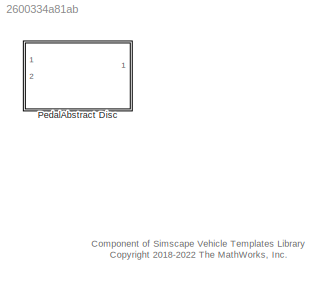
MODEL slx_2600334a81ab
KIND library
CONFIG AbsTol = auto
CONFIG EnableMultiTasking = off
CONFIG FixedStep = auto
CONFIG MaxStep = auto
CONFIG MinStep = auto
CONFIG RelTol = 1e-3
CONFIG SampleTimeConstraint = Unconstrained
CONFIG SolverName = VariableStepAuto
CONFIG StartTime = 0.0
CONFIG StopTime = 10.0
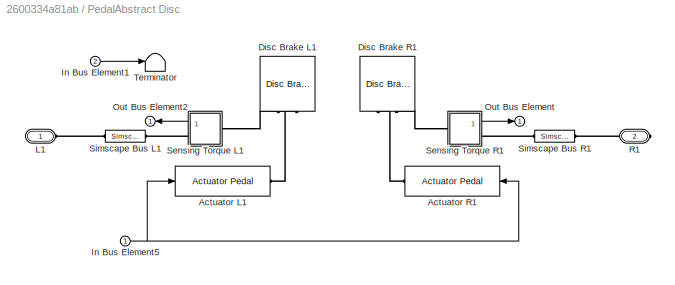
BLOCK [SubSystem] PedalAbstract Disc
  Ports = [2, 1, 0, 0, 0, 1, 1]
  RequestExecContextInheritance = off
  Tag = PublishSubsystem
  VariantControl = Pedal
BLOCK [Reference] PedalAbstract Disc/Actuator L1  REF=Brakes_Elements/Actuator Pedal
  Ports = [1, 0, 0, 0, 0, 0, 1]
  SourceBlock = Brakes_Elements/Actuator Pedal
  SourceType = Brake Actuator, Pedal Input
BLOCK [Reference] PedalAbstract Disc/Actuator R1  REF=Brakes_Elements/Actuator Pedal
  Ports = [1, 0, 0, 0, 0, 0, 1]
  SourceBlock = Brakes_Elements/Actuator Pedal
  SourceType = Brake Actuator, Pedal Input
BLOCK [Reference] PedalAbstract Disc/Disc Brake L1  REF=sdl_lib/Brakes & Detents/Rotational/Disc Brake
  NameLocation = left
  Ports = [0, 0, 0, 0, 0, 2]
  SourceBlock = sdl_lib/Brakes & Detents/Rotational/Disc Brake
  SourceProductBaseCode = LD
  SourceType = Disc Brake
BLOCK [Reference] PedalAbstract Disc/Disc Brake R1  REF=sdl_lib/Brakes & Detents/Rotational/Disc Brake
  NameLocation = right
  Ports = [0, 0, 0, 0, 0, 2]
  SourceBlock = sdl_lib/Brakes & Detents/Rotational/Disc Brake
  SourceProductBaseCode = LD
  SourceType = Disc Brake
BLOCK [Inport] PedalAbstract Disc/In Bus Element1
  Port = 2
BLOCK [Inport] PedalAbstract Disc/In Bus Element5
BLOCK [PMIOPort] PedalAbstract Disc/L1
  Side = Left
BLOCK [Outport] PedalAbstract Disc/Out Bus Element
  VectorParamsAs1DForOutWhenUnconnected = off
BLOCK [Outport] PedalAbstract Disc/Out Bus Element2
  VectorParamsAs1DForOutWhenUnconnected = off
BLOCK [PMIOPort] PedalAbstract Disc/R1
  Port = 2
  Side = Right
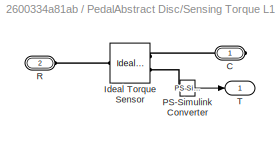
BLOCK [SubSystem] PedalAbstract Disc/Sensing Torque L1
  Ports = [0, 1, 0, 0, 0, 1, 1]
  RequestExecContextInheritance = off
BLOCK [PMIOPort] PedalAbstract Disc/Sensing Torque L1/C
  Side = Right
BLOCK [Reference] PedalAbstract Disc/Sensing Torque L1/Ideal Torque Sensor  REF=fl_lib/Mechanical/Mechanical Sensors/Ideal Torque Sensor
  Ports = [0, 0, 0, 0, 0, 1, 2]
  SourceBlock = fl_lib/Mechanical/Mechanical Sensors/Ideal Torque Sensor
  SourceProductBaseCode = PW,SS,VE
  SourceType = Ideal Torque Sensor
BLOCK [Reference] PedalAbstract Disc/Sensing Torque L1/PS-Simulink Converter  REF=nesl_utility/PS-Simulink
Converter
  Ports = [0, 1, 0, 0, 0, 1]
  SourceBlock = nesl_utility/PS-Simulink\nConverter
  SourceProductBaseCode = SS,PW,VE
  SourceType = PS-Simulink\nConverter
BLOCK [PMIOPort] PedalAbstract Disc/Sensing Torque L1/R
  Port = 2
  Side = Left
BLOCK [Outport] PedalAbstract Disc/Sensing Torque L1/T
  VectorParamsAs1DForOutWhenUnconnected = off
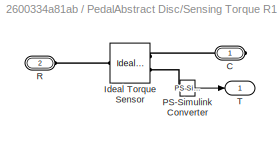
BLOCK [SubSystem] PedalAbstract Disc/Sensing Torque R1
  Ports = [0, 1, 0, 0, 0, 1, 1]
  RequestExecContextInheritance = off
BLOCK [PMIOPort] PedalAbstract Disc/Sensing Torque R1/C
  Side = Right
BLOCK [Reference] PedalAbstract Disc/Sensing Torque R1/Ideal Torque Sensor  REF=fl_lib/Mechanical/Mechanical Sensors/Ideal Torque Sensor
  Ports = [0, 0, 0, 0, 0, 1, 2]
  SourceBlock = fl_lib/Mechanical/Mechanical Sensors/Ideal Torque Sensor
  SourceProductBaseCode = PW,SS,VE
  SourceType = Ideal Torque Sensor
BLOCK [Reference] PedalAbstract Disc/Sensing Torque R1/PS-Simulink Converter  REF=nesl_utility/PS-Simulink
Converter
  Ports = [0, 1, 0, 0, 0, 1]
  SourceBlock = nesl_utility/PS-Simulink\nConverter
  SourceProductBaseCode = SS,PW,VE
  SourceType = PS-Simulink\nConverter
BLOCK [PMIOPort] PedalAbstract Disc/Sensing Torque R1/R
  Port = 2
  Side = Left
BLOCK [Outport] PedalAbstract Disc/Sensing Torque R1/T
  VectorParamsAs1DForOutWhenUnconnected = off
BLOCK [SimscapeBus] PedalAbstract Disc/Simscape Bus L1
  HierarchyStrings = Axle1D
  Ports = [0, 0, 0, 0, 0, 1, 1]
BLOCK [SimscapeBus] PedalAbstract Disc/Simscape Bus R1
  HierarchyStrings = Axle1D
  Ports = [0, 0, 0, 0, 0, 1, 1]
BLOCK [Terminator] PedalAbstract Disc/Terminator
ANNOTATION (root): Component of Simscape Vehicle Templates Library <copyright redacted>
LINE PedalAbstract Disc/In Bus Element1:1 -> PedalAbstract Disc/Terminator:1
NET PedalAbstract Disc/In Bus Element5:1 -> PedalAbstract Disc/Actuator L1:1, PedalAbstract Disc/Actuator R1:1
LINE PedalAbstract Disc/Sensing Torque L1/PS-Simulink Converter:1 -> PedalAbstract Disc/Sensing Torque L1/T:1
LINE PedalAbstract Disc/Sensing Torque L1:1 -> PedalAbstract Disc/Out Bus Element2:1
LINE PedalAbstract Disc/Sensing Torque R1/PS-Simulink Converter:1 -> PedalAbstract Disc/Sensing Torque R1/T:1
LINE PedalAbstract Disc/Sensing Torque R1:1 -> PedalAbstract Disc/Out Bus Element:1
PLINE PedalAbstract Disc/Actuator L1:RConn1 -- PedalAbstract Disc/Disc Brake L1:LConn1
PLINE PedalAbstract Disc/Actuator R1:RConn1 -- PedalAbstract Disc/Disc Brake R1:LConn1
PLINE PedalAbstract Disc/Disc Brake L1:LConn2 -- PedalAbstract Disc/Sensing Torque L1:LConn1
PLINE PedalAbstract Disc/Disc Brake R1:LConn2 -- PedalAbstract Disc/Sensing Torque R1:LConn1
PLINE PedalAbstract Disc/L1:RConn1 -- PedalAbstract Disc/Simscape Bus L1:RConn1
PLINE PedalAbstract Disc/R1:RConn1 -- PedalAbstract Disc/Simscape Bus R1:RConn1
PLINE PedalAbstract Disc/Sensing Torque L1/C:RConn1 -- PedalAbstract Disc/Sensing Torque L1/Ideal Torque Sensor:RConn1
PLINE PedalAbstract Disc/Sensing Torque L1/Ideal Torque Sensor:LConn1 -- PedalAbstract Disc/Sensing Torque L1/R:RConn1
PLINE PedalAbstract Disc/Sensing Torque L1/Ideal Torque Sensor:RConn2 -- PedalAbstract Disc/Sensing Torque L1/PS-Simulink Converter:LConn1
PLINE PedalAbstract Disc/Sensing Torque L1:RConn1 -- PedalAbstract Disc/Simscape Bus L1:LConn1
PLINE PedalAbstract Disc/Sensing Torque R1/C:RConn1 -- PedalAbstract Disc/Sensing Torque R1/Ideal Torque Sensor:RConn1
PLINE PedalAbstract Disc/Sensing Torque R1/Ideal Torque Sensor:LConn1 -- PedalAbstract Disc/Sensing Torque R1/R:RConn1
PLINE PedalAbstract Disc/Sensing Torque R1/Ideal Torque Sensor:RConn2 -- PedalAbstract Disc/Sensing Torque R1/PS-Simulink Converter:LConn1
PLINE PedalAbstract Disc/Sensing Torque R1:RConn1 -- PedalAbstract Disc/Simscape Bus R1:LConn1
note: NET lines group one-source signal fan-out (src -> all destinations, sorted); 1:1 wires keep LINE
